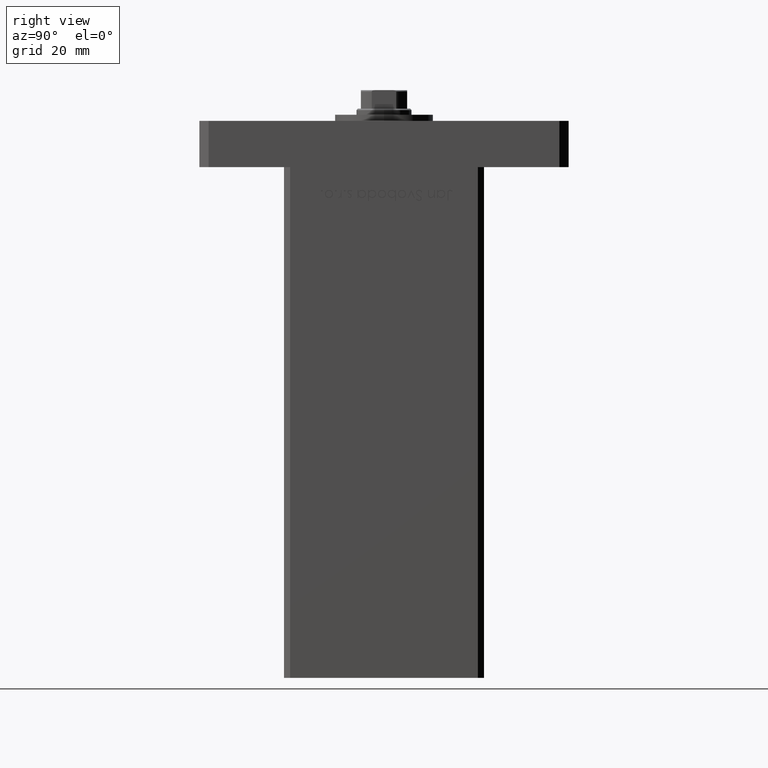
[diagram: clean part render]
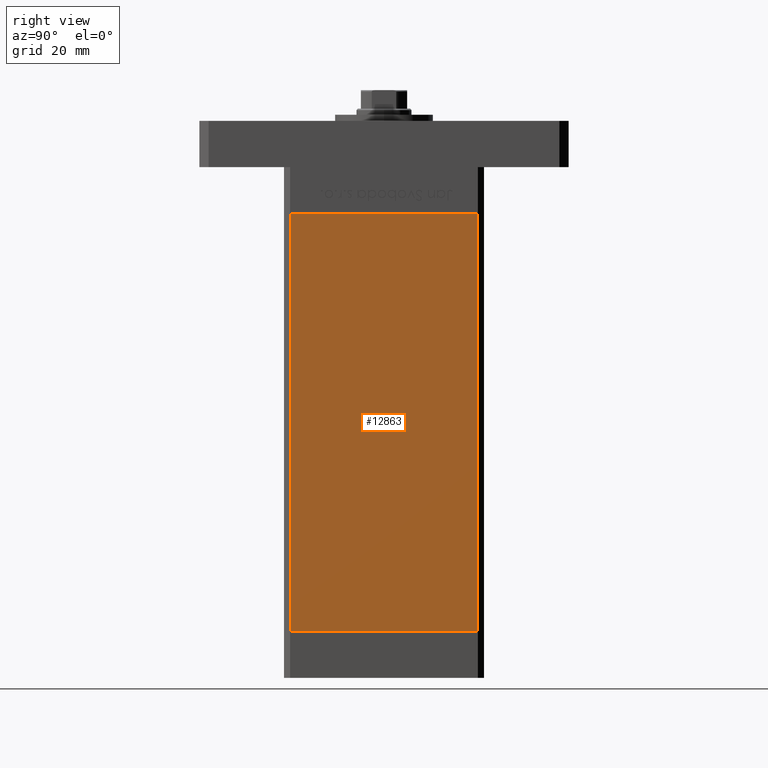
[diagram: same view with one face highlighted and labeled with its STEP entity id]
A machine part, right view. The second image highlights one B-rep face of the part: STEP entity #12863.
In plain terms, the highlighted planar face has unit normal (1, -0, 0).
Its self-contained STEP definition (entity closure, byte-faithful):
#915 = CARTESIAN_POINT ( 'NONE',  ( 37.49999999999999289, -30.50000000000000000, 136.0000000000000000 ) ) ;
#5527 = LINE ( 'NONE', #915, #44337 ) ;
#6183 = CARTESIAN_POINT ( 'NONE',  ( 37.50000000000000711, 30.50000000000000000, 136.0000000000000000 ) ) ;
#6721 = DIRECTION ( 'NONE',  ( 1.000000000000000000, -2.275047181608927644E-16, 0.000000000000000000 ) ) ;
#9636 = VERTEX_POINT ( 'NONE', #35362 ) ;
#9990 = FACE_OUTER_BOUND ( 'NONE', #46340, .T. ) ;
#12863 = ADVANCED_FACE ( 'NONE', ( #9990 ), #42771, .T. ) ;
#13322 = VERTEX_POINT ( 'NONE', #49995 ) ;
#17067 = VERTEX_POINT ( 'NONE', #46052 ) ;
#19061 = DIRECTION ( 'NONE',  ( -0.000000000000000000, -0.000000000000000000, -1.000000000000000000 ) ) ;
#19250 = DIRECTION ( 'NONE',  ( -2.275047181608927644E-16, -1.000000000000000000, 0.000000000000000000 ) ) ;
#19332 = LINE ( 'NONE', #51024, #40877 ) ;
#21441 = VERTEX_POINT ( 'NONE', #41424 ) ;
#22295 = ORIENTED_EDGE ( 'NONE', *, *, #37526, .F. ) ;
#23400 = AXIS2_PLACEMENT_3D ( 'NONE', #6183, #6721, #26538 ) ;
#25311 = CARTESIAN_POINT ( 'NONE',  ( 37.50000000000000711, 30.50000000000000000, 136.0000000000000000 ) ) ;
#26538 = DIRECTION ( 'NONE',  ( 2.275047181608927644E-16, 1.000000000000000000, 0.000000000000000000 ) ) ;
#32200 = ORIENTED_EDGE ( 'NONE', *, *, #36173, .T. ) ;
#33424 = DIRECTION ( 'NONE',  ( -2.275047181608927644E-16, -1.000000000000000000, 0.000000000000000000 ) ) ;
#34267 = DIRECTION ( 'NONE',  ( -0.000000000000000000, -0.000000000000000000, -1.000000000000000000 ) ) ;
#34973 = VECTOR ( 'NONE', #19250, 1000.000000000000000 ) ;
#35018 = VECTOR ( 'NONE', #33424, 1000.000000000000000 ) ;
#35362 = CARTESIAN_POINT ( 'NONE',  ( 37.49999999999999289, -30.50000000000000000, 0.000000000000000000 ) ) ;
#36173 = EDGE_CURVE ( 'NONE', #13322, #9636, #5527, .T. ) ;
#36537 = CARTESIAN_POINT ( 'NONE',  ( 37.50000000000000711, 30.50000000000000000, 0.000000000000000000 ) ) ;
#37526 = EDGE_CURVE ( 'NONE', #21441, #17067, #19332, .T. ) ;
#40877 = VECTOR ( 'NONE', #19061, 1000.000000000000000 ) ;
#41424 = CARTESIAN_POINT ( 'NONE',  ( 37.50000000000000711, 30.50000000000000000, 136.0000000000000000 ) ) ;
#42380 = ORIENTED_EDGE ( 'NONE', *, *, #46366, .T. ) ;
#42771 = PLANE ( 'NONE',  #23400 ) ;
#44337 = VECTOR ( 'NONE', #34267, 1000.000000000000000 ) ;
#45647 = EDGE_CURVE ( 'NONE', #17067, #9636, #48732, .T. ) ;
#45886 = LINE ( 'NONE', #25311, #35018 ) ;
#46052 = CARTESIAN_POINT ( 'NONE',  ( 37.50000000000000711, 30.50000000000000000, 0.000000000000000000 ) ) ;
#46340 = EDGE_LOOP ( 'NONE', ( #51969, #22295, #42380, #32200 ) ) ;
#46366 = EDGE_CURVE ( 'NONE', #21441, #13322, #45886, .T. ) ;
#48732 = LINE ( 'NONE', #36537, #34973 ) ;
#49995 = CARTESIAN_POINT ( 'NONE',  ( 37.49999999999999289, -30.50000000000000000, 136.0000000000000000 ) ) ;
#51024 = CARTESIAN_POINT ( 'NONE',  ( 37.50000000000000711, 30.50000000000000000, 136.0000000000000000 ) ) ;
#51969 = ORIENTED_EDGE ( 'NONE', *, *, #45647, .F. ) ;